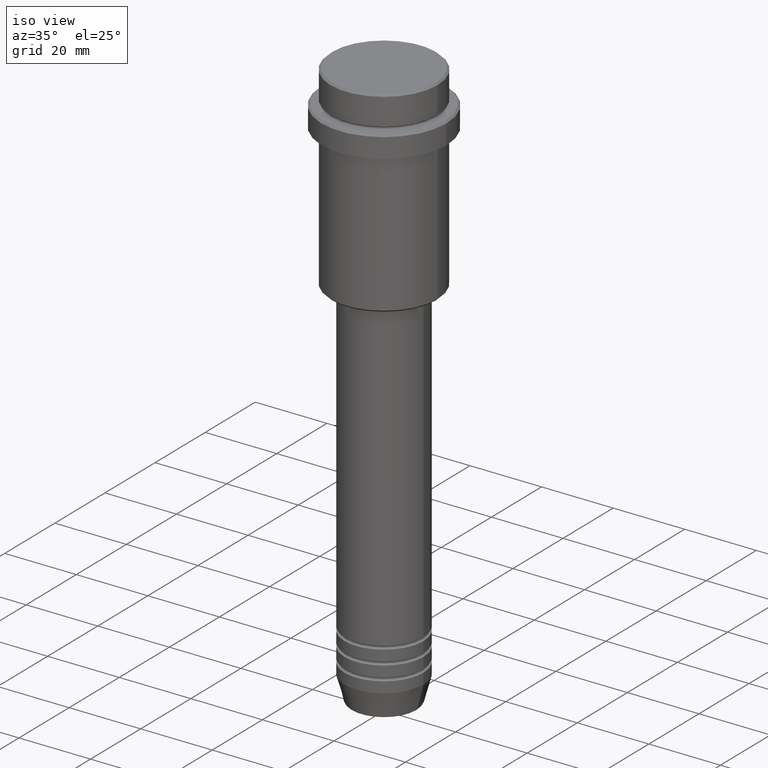
[diagram: clean part render]
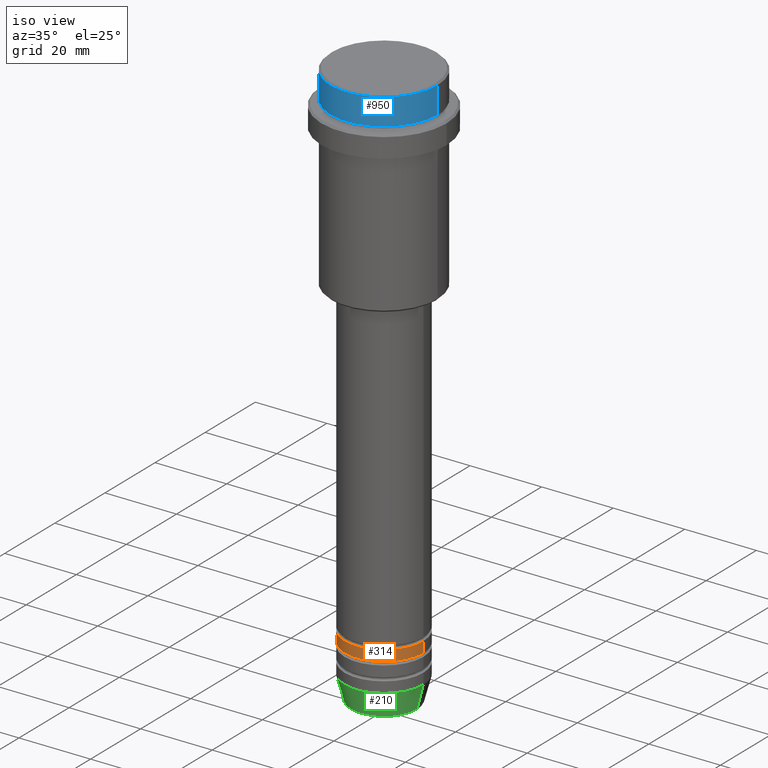
[diagram: same view with three faces highlighted in distinct colors, each labeled with its STEP entity id]
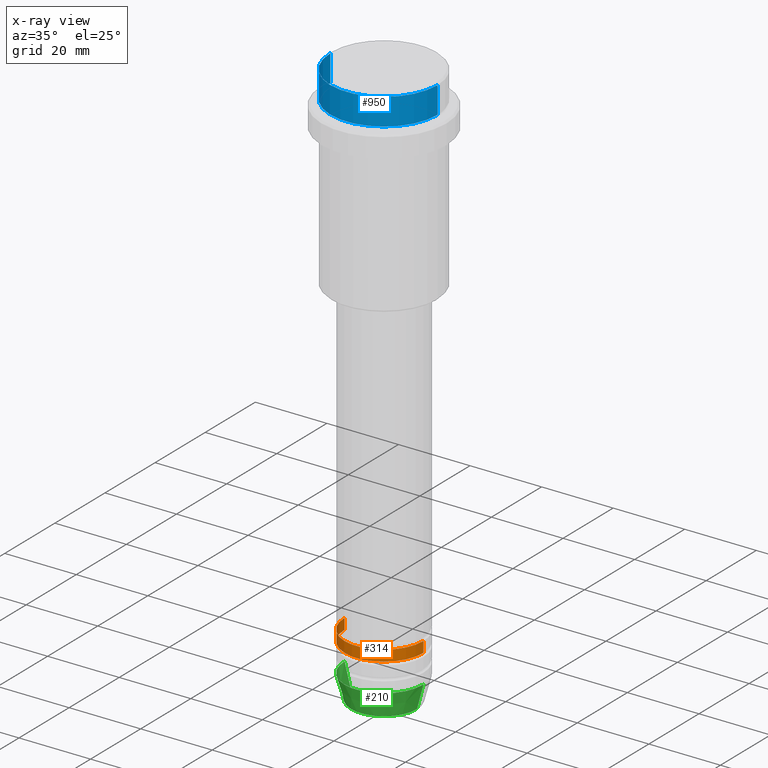
[diagram: x-ray of the same camera — body ghosted, the three highlighted faces saturated]
A machine part, iso view with three faces highlighted in distinct colors.
The next image is the same camera in x-ray (body ghosted, the three faces saturated) — at least one of them is partly hidden behind the body in this view.
Their STEP definitions:

[orange] entity #314 — the highlighted cylindrical surface (partial cylindrical patch) has radius 11 mm, axis along (-0, -0, 1).
#16 = ORIENTED_EDGE ( 'NONE', *, *, #558, .F. ) ;
#107 = CIRCLE ( 'NONE', #1108, 11.00000000000000000 ) ;
#122 = DIRECTION ( 'NONE',  ( -0.000000000000000000, -0.000000000000000000, 1.000000000000000000 ) ) ;
#137 = VERTEX_POINT ( 'NONE', #402 ) ;
#209 = CARTESIAN_POINT ( 'NONE',  ( 11.00000000000000000, 0.000000000000000000, -141.9999999999999147 ) ) ;
#221 = DIRECTION ( 'NONE',  ( 1.000000000000000000, 0.000000000000000000, 0.000000000000000000 ) ) ;
#225 = CARTESIAN_POINT ( 'NONE',  ( 0.000000000000000000, 0.000000000000000000, -141.9999999999999147 ) ) ;
#243 = VERTEX_POINT ( 'NONE', #966 ) ;
#256 = ORIENTED_EDGE ( 'NONE', *, *, #1231, .F. ) ;
#314 = ADVANCED_FACE ( 'NONE', ( #527 ), #1322, .T. ) ;
#334 = LINE ( 'NONE', #472, #1385 ) ;
#359 = EDGE_CURVE ( 'NONE', #918, #243, #734, .T. ) ;
#402 = CARTESIAN_POINT ( 'NONE',  ( -11.00000000000000000, 1.347111479062088405E-15, -141.9999999999999147 ) ) ;
#416 = VECTOR ( 'NONE', #1038, 1000.000000000000000 ) ;
#472 = CARTESIAN_POINT ( 'NONE',  ( 11.00000000000000000, 0.000000000000000000, 0.000000000000000000 ) ) ;
#495 = ORIENTED_EDGE ( 'NONE', *, *, #359, .T. ) ;
#527 = FACE_OUTER_BOUND ( 'NONE', #599, .T. ) ;
#558 = EDGE_CURVE ( 'NONE', #918, #137, #823, .T. ) ;
#584 = DIRECTION ( 'NONE',  ( 1.000000000000000000, 0.000000000000000000, 0.000000000000000000 ) ) ;
#599 = EDGE_LOOP ( 'NONE', ( #16, #495, #769, #256 ) ) ;
#709 = CARTESIAN_POINT ( 'NONE',  ( -11.00000000000000000, 1.347111479062088405E-15, 0.000000000000000000 ) ) ;
#734 = CIRCLE ( 'NONE', #849, 11.00000000000000000 ) ;
#769 = ORIENTED_EDGE ( 'NONE', *, *, #1283, .T. ) ;
#771 = DIRECTION ( 'NONE',  ( -0.000000000000000000, -0.000000000000000000, 1.000000000000000000 ) ) ;
#823 = LINE ( 'NONE', #709, #416 ) ;
#849 = AXIS2_PLACEMENT_3D ( 'NONE', #1236, #771, #584 ) ;
#884 = CARTESIAN_POINT ( 'NONE',  ( -11.00000000000000000, 1.347111479062088405E-15, -144.9999999999999147 ) ) ;
#918 = VERTEX_POINT ( 'NONE', #884 ) ;
#966 = CARTESIAN_POINT ( 'NONE',  ( 11.00000000000000000, 0.000000000000000000, -144.9999999999999147 ) ) ;
#1038 = DIRECTION ( 'NONE',  ( -0.000000000000000000, -0.000000000000000000, 1.000000000000000000 ) ) ;
#1099 = CARTESIAN_POINT ( 'NONE',  ( 0.000000000000000000, 0.000000000000000000, 0.000000000000000000 ) ) ;
#1108 = AXIS2_PLACEMENT_3D ( 'NONE', #225, #1324, #1118 ) ;
#1111 = VERTEX_POINT ( 'NONE', #209 ) ;
#1118 = DIRECTION ( 'NONE',  ( 1.000000000000000000, 0.000000000000000000, 0.000000000000000000 ) ) ;
#1223 = DIRECTION ( 'NONE',  ( -0.000000000000000000, -0.000000000000000000, 1.000000000000000000 ) ) ;
#1231 = EDGE_CURVE ( 'NONE', #137, #1111, #107, .T. ) ;
#1236 = CARTESIAN_POINT ( 'NONE',  ( 0.000000000000000000, 0.000000000000000000, -144.9999999999999147 ) ) ;
#1283 = EDGE_CURVE ( 'NONE', #243, #1111, #334, .T. ) ;
#1322 = CYLINDRICAL_SURFACE ( 'NONE', #1380, 11.00000000000000000 ) ;
#1324 = DIRECTION ( 'NONE',  ( -0.000000000000000000, -0.000000000000000000, 1.000000000000000000 ) ) ;
#1380 = AXIS2_PLACEMENT_3D ( 'NONE', #1099, #122, #221 ) ;
#1385 = VECTOR ( 'NONE', #1223, 1000.000000000000000 ) ;

[blue] entity #950 — the highlighted cylindrical surface (partial cylindrical patch) has radius 15 mm, axis along (-0, -0, 1).
#62 = DIRECTION ( 'NONE',  ( -0.000000000000000000, -0.000000000000000000, 1.000000000000000000 ) ) ;
#168 = CIRCLE ( 'NONE', #1130, 15.00000000000000000 ) ;
#171 = CARTESIAN_POINT ( 'NONE',  ( 0.000000000000000000, 0.000000000000000000, -7.999999999999998224 ) ) ;
#176 = FACE_OUTER_BOUND ( 'NONE', #1208, .T. ) ;
#220 = DIRECTION ( 'NONE',  ( 0.000000000000000000, 0.000000000000000000, -1.000000000000000000 ) ) ;
#244 = DIRECTION ( 'NONE',  ( -0.000000000000000000, -0.000000000000000000, 1.000000000000000000 ) ) ;
#248 = ORIENTED_EDGE ( 'NONE', *, *, #955, .T. ) ;
#279 = DIRECTION ( 'NONE',  ( 1.000000000000000000, 0.000000000000000000, 0.000000000000000000 ) ) ;
#312 = CARTESIAN_POINT ( 'NONE',  ( 15.00000000000000000, 0.000000000000000000, 0.000000000000000000 ) ) ;
#325 = EDGE_CURVE ( 'NONE', #1028, #809, #1295, .T. ) ;
#331 = VECTOR ( 'NONE', #244, 1000.000000000000000 ) ;
#399 = DIRECTION ( 'NONE',  ( -0.000000000000000000, -0.000000000000000000, 1.000000000000000000 ) ) ;
#430 = CARTESIAN_POINT ( 'NONE',  ( 0.000000000000000000, 0.000000000000000000, -0.4999999999999970024 ) ) ;
#529 = AXIS2_PLACEMENT_3D ( 'NONE', #430, #220, #750 ) ;
#613 = CARTESIAN_POINT ( 'NONE',  ( -15.00000000000000000, 1.836970198721029589E-15, -7.999999999999998224 ) ) ;
#633 = DIRECTION ( 'NONE',  ( -0.000000000000000000, -0.000000000000000000, 1.000000000000000000 ) ) ;
#645 = LINE ( 'NONE', #800, #331 ) ;
#679 = EDGE_CURVE ( 'NONE', #809, #1310, #1153, .T. ) ;
#703 = ORIENTED_EDGE ( 'NONE', *, *, #792, .F. ) ;
#750 = DIRECTION ( 'NONE',  ( 1.000000000000000000, 0.000000000000000000, 0.000000000000000000 ) ) ;
#792 = EDGE_CURVE ( 'NONE', #993, #1310, #645, .T. ) ;
#800 = CARTESIAN_POINT ( 'NONE',  ( -15.00000000000000000, 1.836970198721029589E-15, 0.000000000000000000 ) ) ;
#809 = VERTEX_POINT ( 'NONE', #1241 ) ;
#906 = CARTESIAN_POINT ( 'NONE',  ( -15.00000000000000000, 1.836970198721029589E-15, -0.4999999999999970024 ) ) ;
#943 = DIRECTION ( 'NONE',  ( 1.000000000000000000, 0.000000000000000000, 0.000000000000000000 ) ) ;
#945 = VECTOR ( 'NONE', #633, 1000.000000000000000 ) ;
#950 = ADVANCED_FACE ( 'NONE', ( #176 ), #1057, .T. ) ;
#955 = EDGE_CURVE ( 'NONE', #993, #1028, #168, .T. ) ;
#969 = AXIS2_PLACEMENT_3D ( 'NONE', #1036, #62, #943 ) ;
#993 = VERTEX_POINT ( 'NONE', #613 ) ;
#1028 = VERTEX_POINT ( 'NONE', #1166 ) ;
#1036 = CARTESIAN_POINT ( 'NONE',  ( 0.000000000000000000, 0.000000000000000000, 0.000000000000000000 ) ) ;
#1057 = CYLINDRICAL_SURFACE ( 'NONE', #969, 15.00000000000000000 ) ;
#1064 = ORIENTED_EDGE ( 'NONE', *, *, #325, .T. ) ;
#1130 = AXIS2_PLACEMENT_3D ( 'NONE', #171, #399, #279 ) ;
#1153 = CIRCLE ( 'NONE', #529, 15.00000000000000000 ) ;
#1166 = CARTESIAN_POINT ( 'NONE',  ( 15.00000000000000000, 0.000000000000000000, -7.999999999999998224 ) ) ;
#1208 = EDGE_LOOP ( 'NONE', ( #703, #248, #1064, #1287 ) ) ;
#1241 = CARTESIAN_POINT ( 'NONE',  ( 15.00000000000000000, 0.000000000000000000, -0.4999999999999970024 ) ) ;
#1287 = ORIENTED_EDGE ( 'NONE', *, *, #679, .T. ) ;
#1295 = LINE ( 'NONE', #312, #945 ) ;
#1310 = VERTEX_POINT ( 'NONE', #906 ) ;

[green] entity #210 — the highlighted conical surface has half-angle 15 deg.
#27 = VERTEX_POINT ( 'NONE', #1243 ) ;
#139 = VERTEX_POINT ( 'NONE', #281 ) ;
#152 = ORIENTED_EDGE ( 'NONE', *, *, #1371, .F. ) ;
#196 = AXIS2_PLACEMENT_3D ( 'NONE', #562, #896, #354 ) ;
#210 = ADVANCED_FACE ( 'NONE', ( #494 ), #593, .T. ) ;
#257 = CARTESIAN_POINT ( 'NONE',  ( -11.00000000000000000, 1.347111479062088405E-15, -153.0000000000000000 ) ) ;
#280 = DIRECTION ( 'NONE',  ( 1.000000000000000000, 0.000000000000000000, 0.000000000000000000 ) ) ;
#281 = CARTESIAN_POINT ( 'NONE',  ( 9.223655072137194821, 0.000000000000000000, -159.6294095225512137 ) ) ;
#284 = VECTOR ( 'NONE', #1195, 1000.000000000000000 ) ;
#290 = DIRECTION ( 'NONE',  ( -0.000000000000000000, -0.000000000000000000, 1.000000000000000000 ) ) ;
#354 = DIRECTION ( 'NONE',  ( 1.000000000000000000, 0.000000000000000000, 0.000000000000000000 ) ) ;
#398 = VERTEX_POINT ( 'NONE', #1228 ) ;
#437 = VECTOR ( 'NONE', #550, 1000.000000000000000 ) ;
#444 = ORIENTED_EDGE ( 'NONE', *, *, #919, .F. ) ;
#468 = LINE ( 'NONE', #257, #437 ) ;
#494 = FACE_OUTER_BOUND ( 'NONE', #1019, .T. ) ;
#550 = DIRECTION ( 'NONE',  ( -0.2588190451025213501, 3.169619151431772337E-17, 0.9659258262890680902 ) ) ;
#562 = CARTESIAN_POINT ( 'NONE',  ( 0.000000000000000000, 0.000000000000000000, -153.0000000000000000 ) ) ;
#593 = CONICAL_SURFACE ( 'NONE', #752, 11.00000000000000000, 0.2617993877991500740 ) ;
#619 = EDGE_CURVE ( 'NONE', #27, #139, #985, .T. ) ;
#731 = EDGE_CURVE ( 'NONE', #139, #1056, #740, .T. ) ;
#740 = LINE ( 'NONE', #1184, #284 ) ;
#752 = AXIS2_PLACEMENT_3D ( 'NONE', #936, #290, #861 ) ;
#776 = AXIS2_PLACEMENT_3D ( 'NONE', #934, #1264, #280 ) ;
#861 = DIRECTION ( 'NONE',  ( 1.000000000000000000, 0.000000000000000000, 0.000000000000000000 ) ) ;
#896 = DIRECTION ( 'NONE',  ( -0.000000000000000000, -0.000000000000000000, 1.000000000000000000 ) ) ;
#919 = EDGE_CURVE ( 'NONE', #27, #398, #468, .T. ) ;
#934 = CARTESIAN_POINT ( 'NONE',  ( 0.000000000000000000, 0.000000000000000000, -159.6294095225512137 ) ) ;
#936 = CARTESIAN_POINT ( 'NONE',  ( 0.000000000000000000, 0.000000000000000000, -153.0000000000000000 ) ) ;
#952 = CARTESIAN_POINT ( 'NONE',  ( 11.00000000000000000, 0.000000000000000000, -153.0000000000000000 ) ) ;
#985 = CIRCLE ( 'NONE', #776, 9.223655072137194821 ) ;
#1019 = EDGE_LOOP ( 'NONE', ( #444, #1070, #1225, #152 ) ) ;
#1044 = CIRCLE ( 'NONE', #196, 11.00000000000000000 ) ;
#1056 = VERTEX_POINT ( 'NONE', #952 ) ;
#1070 = ORIENTED_EDGE ( 'NONE', *, *, #619, .T. ) ;
#1184 = CARTESIAN_POINT ( 'NONE',  ( 11.00000000000000000, 0.000000000000000000, -153.0000000000000000 ) ) ;
#1195 = DIRECTION ( 'NONE',  ( 0.2588190451025213501, 0.000000000000000000, 0.9659258262890680902 ) ) ;
#1225 = ORIENTED_EDGE ( 'NONE', *, *, #731, .T. ) ;
#1228 = CARTESIAN_POINT ( 'NONE',  ( -11.00000000000000000, 1.347111479062088405E-15, -153.0000000000000000 ) ) ;
#1243 = CARTESIAN_POINT ( 'NONE',  ( -9.223655072137194821, 1.238341722557647596E-15, -159.6294095225512137 ) ) ;
#1264 = DIRECTION ( 'NONE',  ( -0.000000000000000000, -0.000000000000000000, 1.000000000000000000 ) ) ;
#1371 = EDGE_CURVE ( 'NONE', #398, #1056, #1044, .T. ) ;